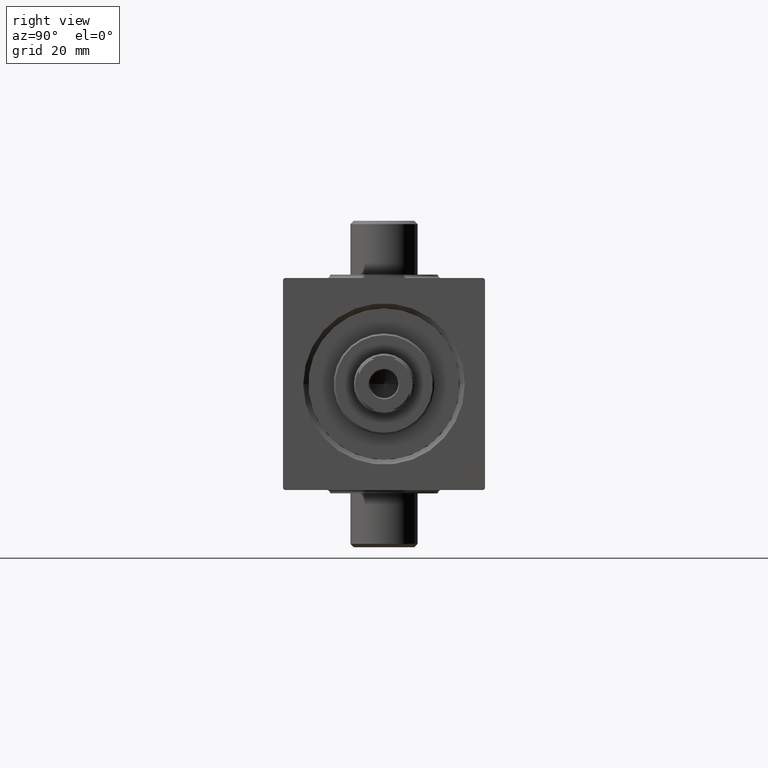
[diagram: clean part render]
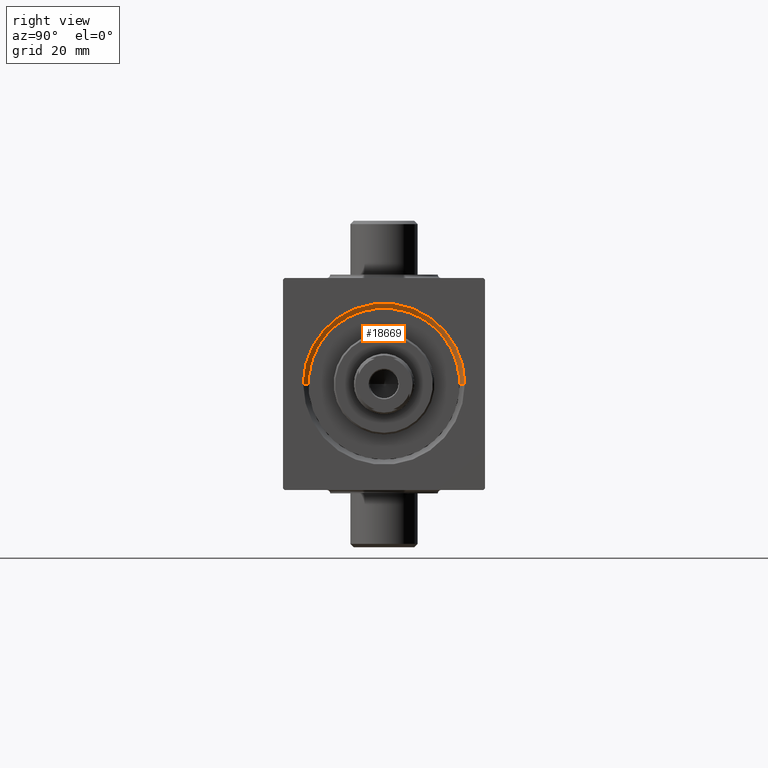
[diagram: same view with one face highlighted and labeled with its STEP entity id]
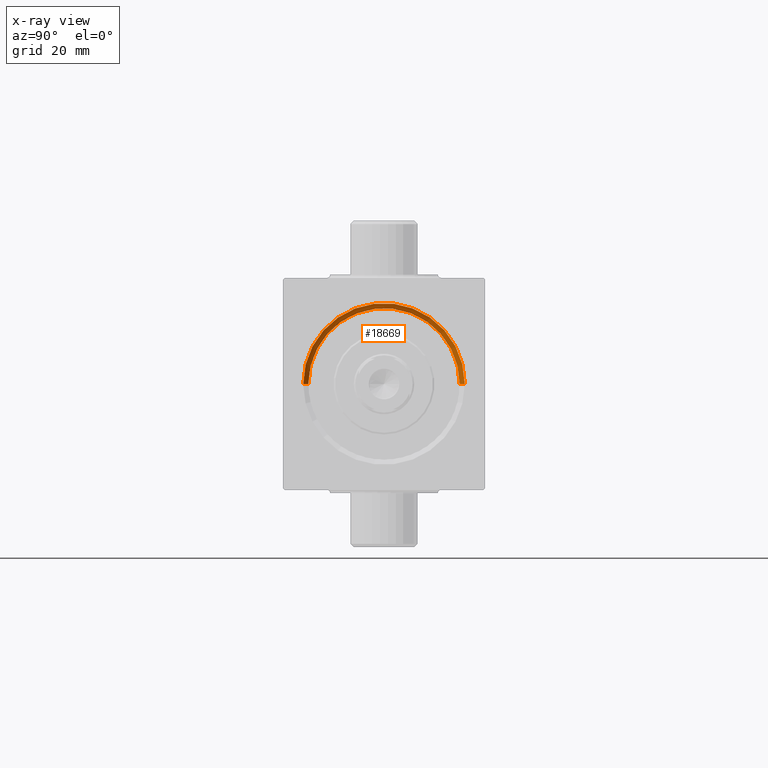
[diagram: x-ray of the same camera — body ghosted, the highlighted face saturated]
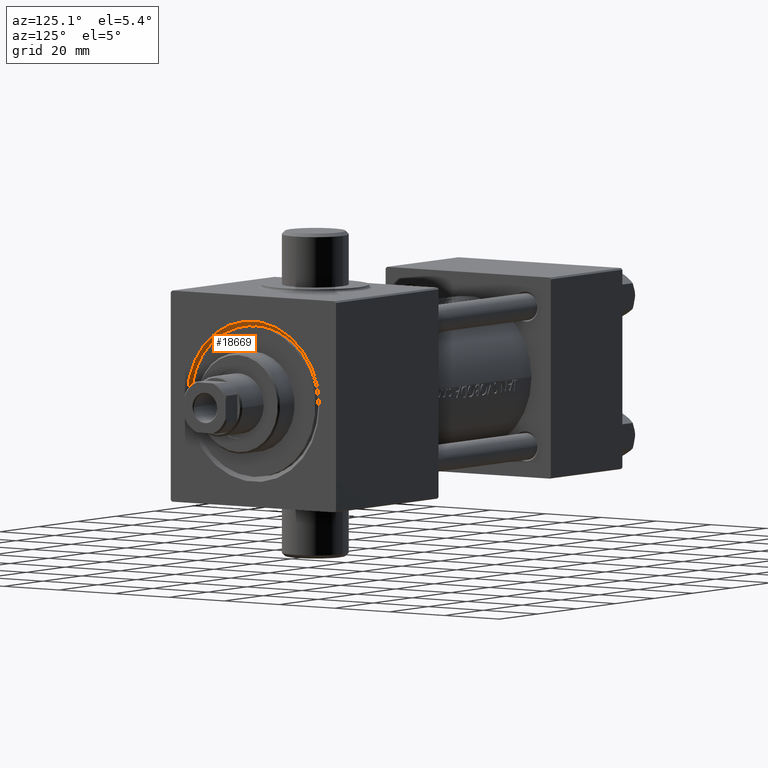
[diagram: same view with one face highlighted and labeled with its STEP entity id]
A machine part, right view. The second image highlights one B-rep face of the part: STEP entity #18669.
The next image is the same camera in x-ray: the body ghosted, the highlighted face saturated — about 0% of this face is hidden behind the body in this view.
A second angle (auxiliary view) of the same face is appended — the face is thin or edge-on in the first view.
In plain terms, the highlighted conical surface has half-angle 45 deg.
Its self-contained STEP definition (entity closure, byte-faithful):
#515 = CIRCLE ( 'NONE', #10230, 22.50000000000000355 ) ;
#632 = DIRECTION ( 'NONE',  ( 0.7071067811865459074, 0.000000000000000000, -0.7071067811865491270 ) ) ;
#855 = CARTESIAN_POINT ( 'NONE',  ( 146.5000000000000284, 0.000000000000000000, -22.50000000000000355 ) ) ;
#1247 = AXIS2_PLACEMENT_3D ( 'NONE', #22955, #12418, #29531 ) ;
#4140 = LINE ( 'NONE', #855, #22209 ) ;
#5520 = LINE ( 'NONE', #8563, #33394 ) ;
#6680 = DIRECTION ( 'NONE',  ( 1.000000000000000000, 0.000000000000000000, 0.000000000000000000 ) ) ;
#7145 = VERTEX_POINT ( 'NONE', #19566 ) ;
#7548 = CARTESIAN_POINT ( 'NONE',  ( 148.0000000000000000, 2.939152317953645922E-15, 23.99999999999998224 ) ) ;
#8563 = CARTESIAN_POINT ( 'NONE',  ( 146.5000000000000284, 2.755455298081545172E-15, 22.50000000000000355 ) ) ;
#9962 = CARTESIAN_POINT ( 'NONE',  ( 146.5000000000000284, 0.000000000000000000, 0.000000000000000000 ) ) ;
#10230 = AXIS2_PLACEMENT_3D ( 'NONE', #9962, #6680, #20261 ) ;
#11731 = VERTEX_POINT ( 'NONE', #27204 ) ;
#12418 = DIRECTION ( 'NONE',  ( -1.000000000000000000, 0.000000000000000000, -0.000000000000000000 ) ) ;
#14437 = FACE_OUTER_BOUND ( 'NONE', #17120, .T. ) ;
#15400 = ORIENTED_EDGE ( 'NONE', *, *, #19475, .T. ) ;
#15902 = ORIENTED_EDGE ( 'NONE', *, *, #28322, .F. ) ;
#16254 = CONICAL_SURFACE ( 'NONE', #25235, 22.50000000000000355, 0.7853981633974506105 ) ;
#17120 = EDGE_LOOP ( 'NONE', ( #15902, #15400, #28970, #24384 ) ) ;
#18669 = ADVANCED_FACE ( 'NONE', ( #14437 ), #16254, .F. ) ;
#19475 = EDGE_CURVE ( 'NONE', #40347, #21055, #5520, .T. ) ;
#19566 = CARTESIAN_POINT ( 'NONE',  ( 148.0000000000000000, 0.000000000000000000, -23.99999999999998224 ) ) ;
#20261 = DIRECTION ( 'NONE',  ( 0.000000000000000000, 0.000000000000000000, 1.000000000000000000 ) ) ;
#21055 = VERTEX_POINT ( 'NONE', #7548 ) ;
#22209 = VECTOR ( 'NONE', #632, 1000.000000000000114 ) ;
#22837 = DIRECTION ( 'NONE',  ( 0.7071067811865459074, 8.659560562354953812E-17, 0.7071067811865491270 ) ) ;
#22955 = CARTESIAN_POINT ( 'NONE',  ( 148.0000000000000000, 0.000000000000000000, 0.000000000000000000 ) ) ;
#23417 = EDGE_CURVE ( 'NONE', #7145, #21055, #33405, .T. ) ;
#24384 = ORIENTED_EDGE ( 'NONE', *, *, #24839, .F. ) ;
#24839 = EDGE_CURVE ( 'NONE', #11731, #7145, #4140, .T. ) ;
#25235 = AXIS2_PLACEMENT_3D ( 'NONE', #43014, #26536, #40831 ) ;
#26536 = DIRECTION ( 'NONE',  ( 1.000000000000000000, 0.000000000000000000, 0.000000000000000000 ) ) ;
#27204 = CARTESIAN_POINT ( 'NONE',  ( 146.5000000000000284, 0.000000000000000000, -22.50000000000000355 ) ) ;
#28322 = EDGE_CURVE ( 'NONE', #40347, #11731, #515, .T. ) ;
#28970 = ORIENTED_EDGE ( 'NONE', *, *, #23417, .F. ) ;
#29531 = DIRECTION ( 'NONE',  ( 0.000000000000000000, 0.000000000000000000, 1.000000000000000000 ) ) ;
#33394 = VECTOR ( 'NONE', #22837, 1000.000000000000114 ) ;
#33405 = CIRCLE ( 'NONE', #1247, 23.99999999999998224 ) ;
#37807 = CARTESIAN_POINT ( 'NONE',  ( 146.5000000000000284, 2.755455298081545172E-15, 22.50000000000000355 ) ) ;
#40347 = VERTEX_POINT ( 'NONE', #37807 ) ;
#40831 = DIRECTION ( 'NONE',  ( 0.000000000000000000, 0.000000000000000000, -1.000000000000000000 ) ) ;
#43014 = CARTESIAN_POINT ( 'NONE',  ( 146.5000000000000284, 0.000000000000000000, 0.000000000000000000 ) ) ;